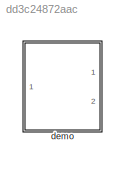
MODEL slx_dd3c24872aac
KIND library
CONFIG AbsTol = auto
CONFIG EnableMultiTasking = off
CONFIG FixedStep = auto
CONFIG MaxStep = auto
CONFIG MinStep = auto
CONFIG RelTol = 1e-3
CONFIG SampleTimeConstraint = Unconstrained
CONFIG Solver = VariableStepAuto
CONFIG SolverName = VariableStepAuto
CONFIG StartTime = 0.0
CONFIG StopTime = 10.0
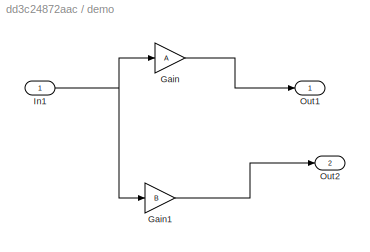
BLOCK [SubSystem] demo
  Ports = [1, 2]
  RequestExecContextInheritance = off
BLOCK [Gain] demo/Gain
  Gain = A
BLOCK [Gain] demo/Gain1
  Gain = B
BLOCK [Inport] demo/In1
BLOCK [Outport] demo/Out1
BLOCK [Outport] demo/Out2
  Port = 2
LINE demo/Gain1:1 -> demo/Out2:1
LINE demo/Gain:1 -> demo/Out1:1
NET demo/In1:1 -> demo/Gain1:1, demo/Gain:1
note: NET lines group one-source signal fan-out (src -> all destinations, sorted); 1:1 wires keep LINE
